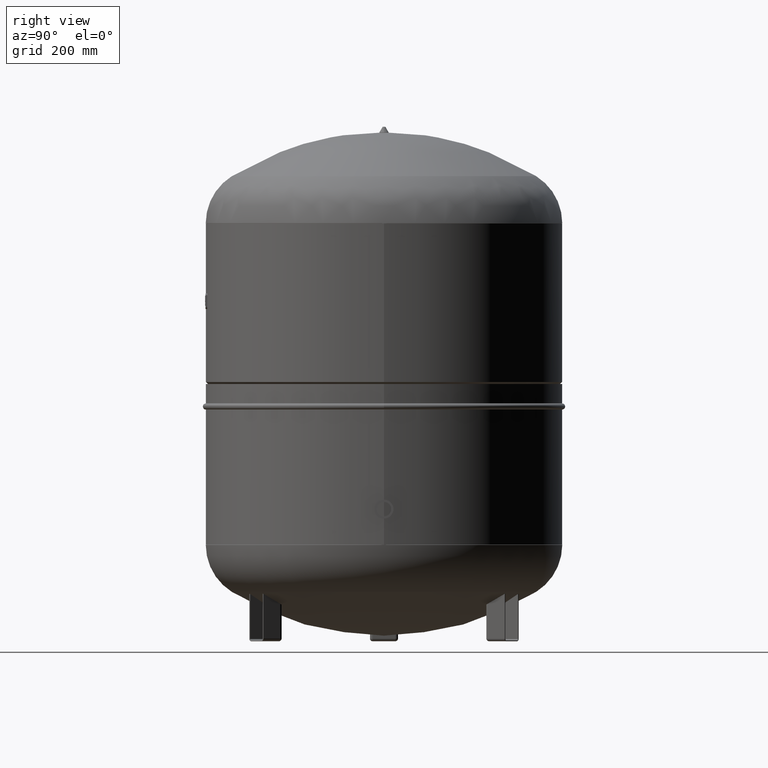
[diagram: clean part render]
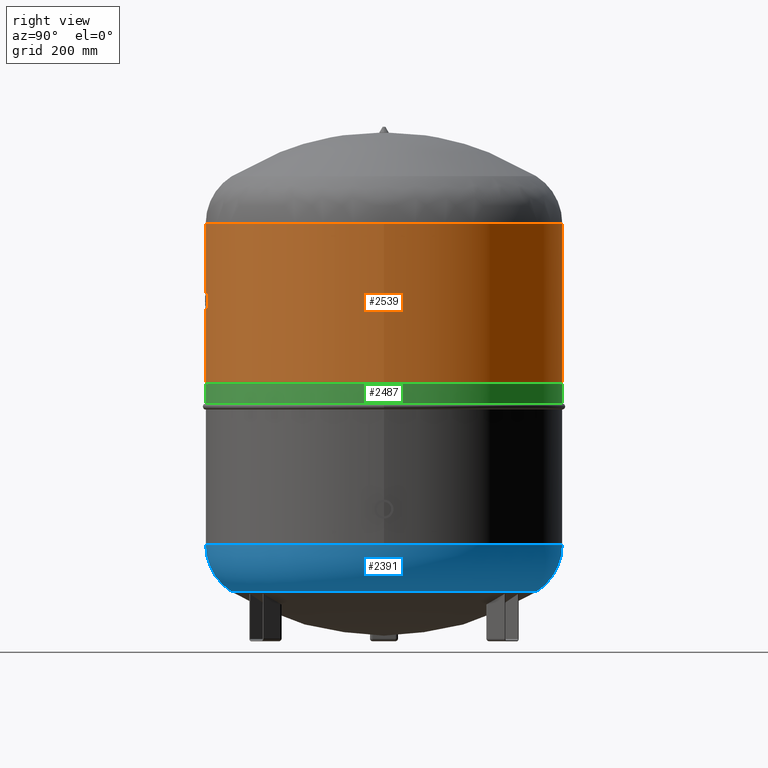
[diagram: same view with three faces highlighted in distinct colors, each labeled with its STEP entity id]
A machine part, right view with three faces highlighted in distinct colors.
Their STEP definitions:

[orange] entity #2539 — the highlighted cylindrical surface (bore or boss wall) has radius 317 mm, axis along (0, 0, 1).
#2428=CARTESIAN_POINT('',(317.0,0.0,743.0));
#2429=VERTEX_POINT('',#2428);
#2430=CARTESIAN_POINT('',(1.668796E-014,0.0,743.0));
#2431=DIRECTION('',(0.0,0.0,1.0));
#2432=DIRECTION('',(1.0,0.0,0.0));
#2433=AXIS2_PLACEMENT_3D('',#2430,#2431,#2432);
#2434=CIRCLE('',#2433,317.0);
#2435=EDGE_CURVE('',#2429,#2429,#2434,.T.);
#2513=CARTESIAN_POINT('',(316.999999999999940,0.0,460.999993016203580));
#2514=VERTEX_POINT('',#2513);
#2515=CARTESIAN_POINT('',(2.082273E-016,0.0,460.999993016203630));
#2516=DIRECTION('',(0.0,0.0,1.0));
#2517=DIRECTION('',(1.0,0.0,0.0));
#2518=AXIS2_PLACEMENT_3D('',#2515,#2516,#2517);
#2519=CIRCLE('',#2518,316.999999999999940);
#2520=EDGE_CURVE('',#2514,#2514,#2519,.T.);
#2528=CARTESIAN_POINT('',(8.448096E-015,0.0,599.499996508101730));
#2529=DIRECTION('',(5.949364E-017,0.0,1.0));
#2530=DIRECTION('',(1.0,0.0,0.0));
#2531=AXIS2_PLACEMENT_3D('',#2528,#2529,#2530);
#2532=CYLINDRICAL_SURFACE('',#2531,316.999999999999940);
#2533=ORIENTED_EDGE('',*,*,#2435,.F.);
#2534=EDGE_LOOP('',(#2533));
#2535=FACE_OUTER_BOUND('',#2534,.T.);
#2536=ORIENTED_EDGE('',*,*,#2520,.T.);
#2537=EDGE_LOOP('',(#2536));
#2538=FACE_BOUND('',#2537,.T.);
#2539=ADVANCED_FACE('',(#2535,#2538),#2532,.T.);

[blue] entity #2391 — the highlighted toroidal blend (fillet) surface has major radius 218 mm and minor (blend) radius 99 mm.
#2277=CARTESIAN_POINT('',(317.0,9.105293E-015,171.759449372628640));
#2278=VERTEX_POINT('',#2277);
#2285=CARTESIAN_POINT('',(-3.882002E-014,317.0,171.759449372628690));
#2286=VERTEX_POINT('',#2285);
#2287=CARTESIAN_POINT('',(-1.556097E-014,-2.971473E-014,171.759449372628640));
#2288=DIRECTION('',(0.0,0.0,1.0));
#2289=DIRECTION('',(-1.0,0.0,0.0));
#2290=AXIS2_PLACEMENT_3D('',#2287,#2288,#2289);
#2291=CIRCLE('',#2290,317.000000000000060);
#2292=EDGE_CURVE('',#2278,#2286,#2291,.T.);
#2309=CARTESIAN_POINT('',(6.444462E-030,-317.000000000000110,171.759449372628580));
#2310=VERTEX_POINT('',#2309);
#2311=CARTESIAN_POINT('',(8.065826E-015,-270.639024390243830,87.913560318702380));
#2312=VERTEX_POINT('',#2311);
#2313=CARTESIAN_POINT('',(0.0,-218.000000000000030,171.759449372628640));
#2314=DIRECTION('',(1.0,0.0,0.0));
#2315=DIRECTION('',(0.0,-1.0,0.0));
#2316=AXIS2_PLACEMENT_3D('',#2313,#2314,#2315);
#2317=CIRCLE('',#2316,99.0);
#2318=EDGE_CURVE('',#2310,#2312,#2317,.T.);
#2328=CARTESIAN_POINT('',(-2.507680E-014,270.639024390243830,87.913560318702480));
#2329=VERTEX_POINT('',#2328);
#2330=CARTESIAN_POINT('',(-2.669642E-014,217.999999999999970,171.759449372628690));
#2331=DIRECTION('',(-1.0,0.0,0.0));
#2332=DIRECTION('',(0.0,1.0,0.0));
#2333=AXIS2_PLACEMENT_3D('',#2330,#2331,#2332);
#2334=CIRCLE('',#2333,99.0);
#2335=EDGE_CURVE('',#2286,#2329,#2334,.T.);
#2363=CARTESIAN_POINT('',(-7.495146E-015,-1.431249E-014,87.913560318702437));
#2364=DIRECTION('',(0.0,0.0,1.0));
#2365=DIRECTION('',(-1.0,0.0,0.0));
#2366=AXIS2_PLACEMENT_3D('',#2363,#2364,#2365);
#2367=CIRCLE('',#2366,270.639024390243830);
#2368=EDGE_CURVE('',#2312,#2329,#2367,.T.);
#2373=CARTESIAN_POINT('',(0.0,-2.971473E-014,171.759449372628670));
#2374=DIRECTION('',(-9.619823E-017,-1.836970E-016,1.0));
#2375=DIRECTION('',(0.0,-1.0,0.0));
#2376=AXIS2_PLACEMENT_3D('',#2373,#2374,#2375);
#2377=TOROIDAL_SURFACE('',#2376,218.0,99.0);
#2378=ORIENTED_EDGE('',*,*,#2318,.T.);
#2379=ORIENTED_EDGE('',*,*,#2368,.T.);
#2380=ORIENTED_EDGE('',*,*,#2335,.F.);
#2381=ORIENTED_EDGE('',*,*,#2292,.F.);
#2382=CARTESIAN_POINT('',(-1.556097E-014,-2.971473E-014,171.759449372628640));
#2383=DIRECTION('',(0.0,0.0,1.0));
#2384=DIRECTION('',(-1.0,0.0,0.0));
#2385=AXIS2_PLACEMENT_3D('',#2382,#2383,#2384);
#2386=CIRCLE('',#2385,317.000000000000060);
#2387=EDGE_CURVE('',#2310,#2278,#2386,.T.);
#2388=ORIENTED_EDGE('',*,*,#2387,.F.);
#2389=EDGE_LOOP('',(#2378,#2379,#2380,#2381,#2388));
#2390=FACE_OUTER_BOUND('',#2389,.T.);
#2391=ADVANCED_FACE('',(#2390),#2377,.T.);

[green] entity #2487 — the highlighted cylindrical surface (bore or boss wall) has radius 317.007 mm, axis along (0, 0, 1).
#2456=CARTESIAN_POINT('',(317.006991890022050,0.0,422.950004485004230));
#2457=VERTEX_POINT('',#2456);
#2458=CARTESIAN_POINT('',(-2.055505E-015,0.0,422.950004485004290));
#2459=DIRECTION('',(0.0,0.0,1.0));
#2460=DIRECTION('',(1.0,0.0,0.0));
#2461=AXIS2_PLACEMENT_3D('',#2458,#2459,#2460);
#2462=CIRCLE('',#2461,317.006991890022050);
#2463=EDGE_CURVE('',#2457,#2457,#2462,.T.);
#2468=CARTESIAN_POINT('',(-1.027752E-015,0.0,440.225002242502170));
#2469=DIRECTION('',(5.949364E-017,0.0,1.0));
#2470=DIRECTION('',(1.0,0.0,0.0));
#2471=AXIS2_PLACEMENT_3D('',#2468,#2469,#2470);
#2472=CYLINDRICAL_SURFACE('',#2471,317.006991890022050);
#2473=CARTESIAN_POINT('',(317.006991890022050,0.0,457.500000000000000));
#2474=VERTEX_POINT('',#2473);
#2475=CARTESIAN_POINT('',(1.972152E-030,0.0,457.500000000000060));
#2476=DIRECTION('',(0.0,0.0,1.0));
#2477=DIRECTION('',(1.0,0.0,0.0));
#2478=AXIS2_PLACEMENT_3D('',#2475,#2476,#2477);
#2479=CIRCLE('',#2478,317.006991890022050);
#2480=EDGE_CURVE('',#2474,#2474,#2479,.T.);
#2481=ORIENTED_EDGE('',*,*,#2480,.F.);
#2482=EDGE_LOOP('',(#2481));
#2483=FACE_OUTER_BOUND('',#2482,.T.);
#2484=ORIENTED_EDGE('',*,*,#2463,.T.);
#2485=EDGE_LOOP('',(#2484));
#2486=FACE_BOUND('',#2485,.T.);
#2487=ADVANCED_FACE('',(#2483,#2486),#2472,.T.);